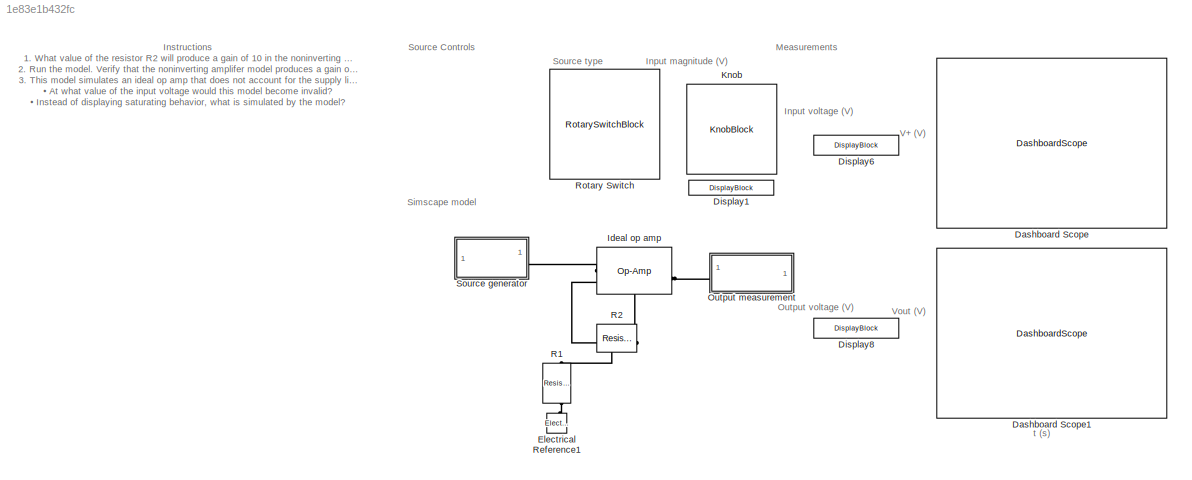
MODEL slx_1e83e1b432fc
KIND model
CONFIG AbsTol = auto
CONFIG EnableMultiTasking = off
CONFIG FixedStep = auto
CONFIG MaxStep = 1e-4
CONFIG MinStep = auto
CONFIG RelTol = 1e-3
CONFIG SampleTimeConstraint = Unconstrained
CONFIG SolverName = VariableStepAuto
CONFIG StartTime = 0.0
CONFIG StopTime = inf
BLOCK [DashboardScope] Dashboard Scope
  ScaleAtStop = off
  TimeSpan = 0.10000000000000001
  UpdateMode = Scroll
  Ymax = 21
  Ymin = -21
BLOCK [DashboardScope] Dashboard Scope1
  ScaleAtStop = off
  TimeSpan = 0.10000000000000001
  UpdateMode = Scroll
  Ymax = 21
  Ymin = -21
BLOCK [DisplayBlock] Display1
  Alignment = Right
  Format = Custom
  FormatString = %0.4f
  LabelPosition = Hide
  Transparency = 1
BLOCK [DisplayBlock] Display6
  Alignment = Right
  Format = Custom
  FormatString = %0.4f
  LabelPosition = Hide
  Transparency = 1
BLOCK [DisplayBlock] Display8
  Alignment = Right
  Format = Custom
  FormatString = %0.4f
  LabelPosition = Hide
  Transparency = 1
BLOCK [Reference] Electrical Reference1  REF=fl_lib/Electrical/Electrical Elements/Electrical Reference
  NameLocation = right
  SourceBlock = fl_lib/Electrical/Electrical Elements/Electrical Reference
  SourceType = Electrical Reference
BLOCK [Reference] Ideal op amp  REF=fl_lib/Electrical/Electrical Elements/Op-Amp
  SourceBlock = fl_lib/Electrical/Electrical Elements/Op-Amp
  SourceType = Op-Amp
BLOCK [KnobBlock] Knob
  LabelPosition = Hide
  ScaleMax = 20
  TickInterval = 5
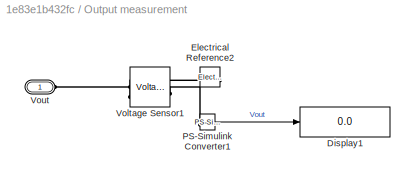
BLOCK [SubSystem] Output measurement
BLOCK [Display] Output measurement/Display1
  Decimation = 1
BLOCK [Reference] Output measurement/Electrical Reference2  REF=fl_lib/Electrical/Electrical Elements/Electrical Reference
  NameLocation = top
  SourceBlock = fl_lib/Electrical/Electrical Elements/Electrical Reference
  SourceType = Electrical Reference
BLOCK [Reference] Output measurement/PS-Simulink Converter1  REF=nesl_utility/PS-Simulink
Converter
  SourceBlock = nesl_utility/PS-Simulink\nConverter
  SourceType = PS-Simulink\nConverter
BLOCK [Reference] Output measurement/Voltage Sensor1  REF=fl_lib/Electrical/Electrical Sensors/Voltage Sensor
  NameLocation = top
  SourceBlock = fl_lib/Electrical/Electrical Sensors/Voltage Sensor
  SourceType = Voltage Sensor
BLOCK [PMIOPort] Output measurement/Vout
  Side = Left
BLOCK [Reference] R1  REF=fl_lib/Electrical/Electrical Elements/Resistor
  AttributesFormatString = %<R> %<R_unit>
  NameLocation = left
  SourceBlock = fl_lib/Electrical/Electrical Elements/Resistor
  SourceType = Resistor
BLOCK [Reference] R2  REF=fl_lib/Electrical/Electrical Elements/Resistor
  AttributesFormatString = %<R> %<R_unit>
  SourceBlock = fl_lib/Electrical/Electrical Elements/Resistor
  SourceType = Resistor
BLOCK [RotarySwitchBlock] Rotary Switch
  LabelPosition = Hide
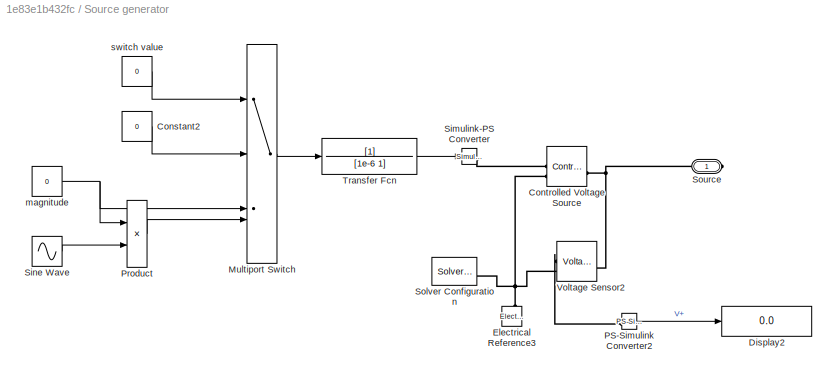
BLOCK [SubSystem] Source generator
BLOCK [Constant] Source generator/Constant2
  Value = 0
BLOCK [Reference] Source generator/Controlled Voltage Source  REF=fl_lib/Electrical/Electrical Sources/Controlled Voltage
Source
  NameLocation = top
  SourceBlock = fl_lib/Electrical/Electrical Sources/Controlled Voltage\nSource
  SourceType = Controlled Voltage\nSource
BLOCK [Display] Source generator/Display2
  Decimation = 1
BLOCK [Reference] Source generator/Electrical Reference3  REF=fl_lib/Electrical/Electrical Elements/Electrical Reference
  NameLocation = right
  SourceBlock = fl_lib/Electrical/Electrical Elements/Electrical Reference
  SourceType = Electrical Reference
BLOCK [MultiPortSwitch] Source generator/Multiport Switch
  DataPortOrder = Zero-based contiguous
  InputSameDT = off
  SaturateOnIntegerOverflow = off
  zeroidx = on
BLOCK [Reference] Source generator/PS-Simulink Converter2  REF=nesl_utility/PS-Simulink
Converter
  SourceBlock = nesl_utility/PS-Simulink\nConverter
  SourceType = PS-Simulink\nConverter
BLOCK [Product] Source generator/Product
BLOCK [Reference] Source generator/Simulink-PS Converter  REF=nesl_utility/Simulink-PS
Converter
  SourceBlock = nesl_utility/Simulink-PS\nConverter
  SourceType = Simulink-PS\nConverter
BLOCK [Sin] Source generator/Sine Wave
  Frequency = 2*pi*60
  SampleTime = 0
BLOCK [Reference] Source generator/Solver Configuration  REF=nesl_utility/Solver
Configuration
  SourceBlock = nesl_utility/Solver\nConfiguration
  SourceType = Solver\nConfiguration
BLOCK [PMIOPort] Source generator/Source
  Side = Right
BLOCK [TransferFcn] Source generator/Transfer Fcn
  Denominator = [1e-6 1]
BLOCK [Reference] Source generator/Voltage Sensor2  REF=fl_lib/Electrical/Electrical Sensors/Voltage Sensor
  SourceBlock = fl_lib/Electrical/Electrical Sensors/Voltage Sensor
  SourceType = Voltage Sensor
BLOCK [Constant] Source generator/magnitude
  Value = 0
BLOCK [Constant] Source generator/switch value
  Value = 0
ANNOTATION (root): Instructions 1. What value of the resistor R2 will produce a gain of 10 in the noninverting amplifier with R1 = 1 k Ω ? Set R2 to this value. 2. Run the model. Verify that the noninverting amplifer model produces a gain of 10. 3. This model simulates an ideal op amp that does not account for the supply limits of a real op amp. Suppose that the real system had a voltage supply of Vs+ = 10 V and Vs-...<+156ch>
ANNOTATION (root): Input magnitude (V)
ANNOTATION (root): Input voltage (V)
ANNOTATION (root): Measurements
ANNOTATION (root): Output voltage (V)
ANNOTATION (root): Simscape model
ANNOTATION (root): Source Controls
ANNOTATION (root): Source type
ANNOTATION (root): V+ (V)
ANNOTATION (root): Vout (V)
ANNOTATION (root): t (s)
LINE Output measurement/PS-Simulink Converter1:1 -> Output measurement/Display1:1
LINE Source generator/Constant2:1 -> Source generator/Multiport Switch:2
LINE Source generator/Multiport Switch:1 -> Source generator/Transfer Fcn:1
LINE Source generator/PS-Simulink Converter2:1 -> Source generator/Display2:1
LINE Source generator/Product:1 -> Source generator/Multiport Switch:4
LINE Source generator/Sine Wave:1 -> Source generator/Product:2
LINE Source generator/Transfer Fcn:1 -> Source generator/Simulink-PS Converter:1
NET Source generator/magnitude:1 -> Source generator/Multiport Switch:3, Source generator/Product:1
LINE Source generator/switch value:1 -> Source generator/Multiport Switch:1
PLINE Electrical Reference1:LConn1 -- R1:RConn1
PLINE Ideal op amp:LConn1 -- Source generator:RConn1
PNET net1: Ideal op amp:LConn2 -- R1:LConn1 -- R2:RConn1
PNET net2: Ideal op amp:RConn1 -- Output measurement:LConn1 -- R2:LConn1
PLINE Output measurement/Electrical Reference2:LConn1 -- Output measurement/Voltage Sensor1:RConn2
PLINE Output measurement/PS-Simulink Converter1:LConn1 -- Output measurement/Voltage Sensor1:RConn1
PLINE Output measurement/Voltage Sensor1:LConn1 -- Output measurement/Vout:RConn1
PNET net3: Source generator/Controlled Voltage Source:LConn1 -- Source generator/Source:RConn1 -- Source generator/Voltage Sensor2:LConn1
PLINE Source generator/Controlled Voltage Source:RConn1 -- Source generator/Simulink-PS Converter:RConn1
PNET net4: Source generator/Controlled Voltage Source:RConn2 -- Source generator/Electrical Reference3:LConn1 -- Source generator/Solver Configuration:RConn1 -- Source generator/Voltage Sensor2:RConn2
PLINE Source generator/PS-Simulink Converter2:LConn1 -- Source generator/Voltage Sensor2:RConn1
note: NET lines group one-source signal fan-out (src -> all destinations, sorted); 1:1 wires keep LINE; PNET lines group multi-terminal physical nets as a canonical sorted terminal list (undirected conserving connections); 2-terminal nets keep the pairwise PLINE form
